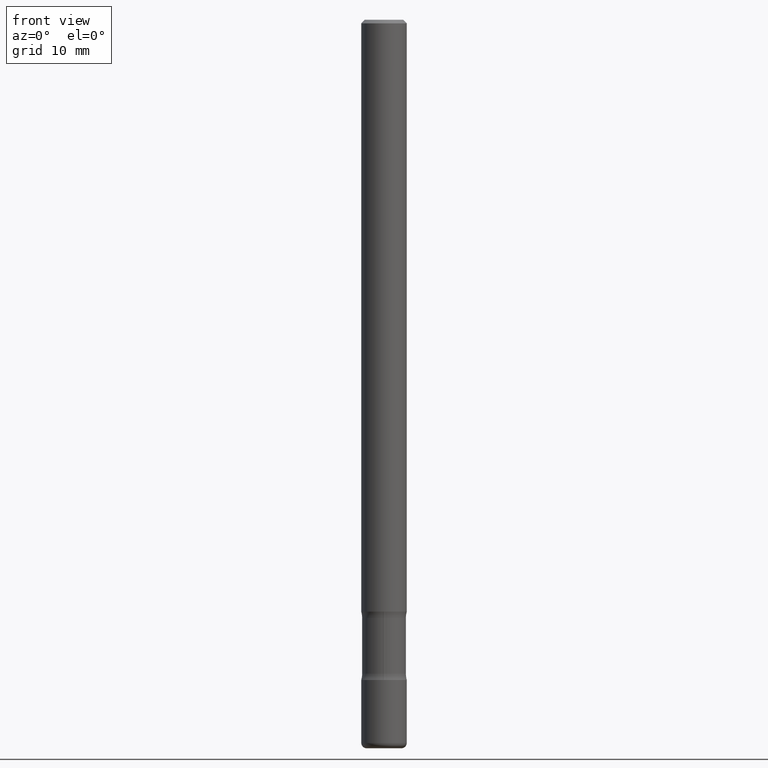
[diagram: clean part render]
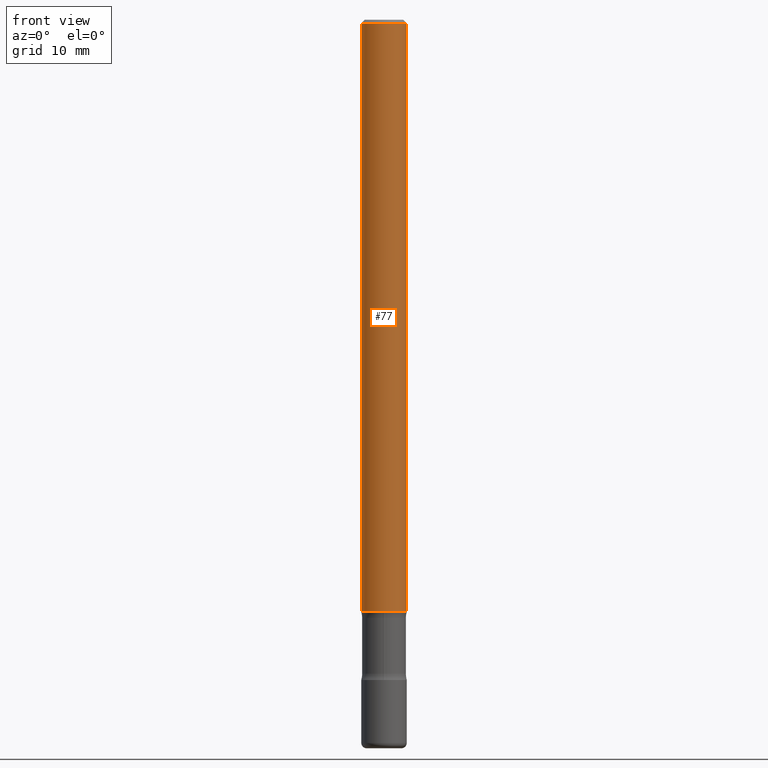
[diagram: same view with one face highlighted and labeled with its STEP entity id]
A machine part, front view. The second image highlights one B-rep face of the part: STEP entity #77.
In plain terms, the highlighted cylindrical surface (edge-blend (fillet) strip) has radius 3.175 mm, axis along (-0, 0, 1).
Its self-contained STEP definition (entity closure, byte-faithful):
#37 = ORIENTED_EDGE ( 'NONE', *, *, #190, .F. ) ;
#39 = CARTESIAN_POINT ( 'NONE',  ( 7.947773620101693940E-29, -1.134731435124022443E-14, -3.250000000000000000 ) ) ;
#77 = ADVANCED_FACE ( 'NONE', ( #260 ), #253, .T. ) ;
#85 = CARTESIAN_POINT ( 'NONE',  ( 0.1250000000000000000, -1.222018468595100619E-14, -3.250000000000000000 ) ) ;
#108 = VERTEX_POINT ( 'NONE', #339 ) ;
#136 = DIRECTION ( 'NONE',  ( -2.445468806185136877E-29, 3.491481338843145188E-15, 1.000000000000000000 ) ) ;
#160 = DIRECTION ( 'NONE',  ( -2.445468806185136877E-29, 3.491481338843145188E-15, 1.000000000000000000 ) ) ;
#184 = ORIENTED_EDGE ( 'NONE', *, *, #439, .F. ) ;
#190 = EDGE_CURVE ( 'NONE', #108, #415, #728, .T. ) ;
#192 = ORIENTED_EDGE ( 'NONE', *, *, #427, .T. ) ;
#198 = DIRECTION ( 'NONE',  ( 1.000000000000000000, -6.982962677686266711E-15, 0.000000000000000000 ) ) ;
#208 = CARTESIAN_POINT ( 'NONE',  ( -0.1249999999999996947, 8.030407079339181671E-16, -0.02000000000000002470 ) ) ;
#224 = DIRECTION ( 'NONE',  ( 1.000000000000000000, -6.982962677686262766E-15, 0.000000000000000000 ) ) ;
#235 = ORIENTED_EDGE ( 'NONE', *, *, #742, .T. ) ;
#245 = VERTEX_POINT ( 'NONE', #85 ) ;
#253 = CYLINDRICAL_SURFACE ( 'NONE', #756, 0.1249999999999998473 ) ;
#260 = FACE_OUTER_BOUND ( 'NONE', #282, .T. ) ;
#282 = EDGE_LOOP ( 'NONE', ( #37, #235, #192, #184 ) ) ;
#300 = CARTESIAN_POINT ( 'NONE',  ( 0.1249999999999996947, -9.273918764983021797E-16, -0.02000000000000002470 ) ) ;
#311 = CARTESIAN_POINT ( 'NONE',  ( 4.890937612370279289E-31, -6.982962677686299005E-17, -0.02000000000000002470 ) ) ;
#312 = DIRECTION ( 'NONE',  ( -2.445468806185136597E-29, 3.491481338843145583E-15, 1.000000000000000000 ) ) ;
#339 = CARTESIAN_POINT ( 'NONE',  ( -0.1250000000000000278, -4.820393569308410741E-15, -3.250000000000000000 ) ) ;
#345 = CARTESIAN_POINT ( 'NONE',  ( -0.1249999999999998473, 8.881784197001241477E-16, -6.148668862818624520E-30 ) ) ;
#377 = CIRCLE ( 'NONE', #795, 0.1249999999999996947 ) ;
#415 = VERTEX_POINT ( 'NONE', #208 ) ;
#427 = EDGE_CURVE ( 'NONE', #245, #519, #518, .T. ) ;
#439 = EDGE_CURVE ( 'NONE', #415, #519, #377, .T. ) ;
#445 = CARTESIAN_POINT ( 'NONE',  ( 0.000000000000000000, 0.000000000000000000, 0.000000000000000000 ) ) ;
#449 = AXIS2_PLACEMENT_3D ( 'NONE', #39, #790, #224 ) ;
#514 = DIRECTION ( 'NONE',  ( -2.445468806185136597E-29, 3.491481338843145583E-15, 1.000000000000000000 ) ) ;
#518 = LINE ( 'NONE', #576, #632 ) ;
#519 = VERTEX_POINT ( 'NONE', #300 ) ;
#575 = CIRCLE ( 'NONE', #449, 0.1250000000000000000 ) ;
#576 = CARTESIAN_POINT ( 'NONE',  ( 0.1249999999999998473, -8.728703347107822541E-16, 6.095220969744912034E-30 ) ) ;
#581 = DIRECTION ( 'NONE',  ( 1.000000000000000000, -6.982962677686266711E-15, 4.876176775795935793E-29 ) ) ;
#630 = VECTOR ( 'NONE', #160, 39.37007874015748143 ) ;
#632 = VECTOR ( 'NONE', #136, 39.37007874015748143 ) ;
#728 = LINE ( 'NONE', #345, #630 ) ;
#742 = EDGE_CURVE ( 'NONE', #108, #245, #575, .T. ) ;
#756 = AXIS2_PLACEMENT_3D ( 'NONE', #445, #312, #581 ) ;
#790 = DIRECTION ( 'NONE',  ( -2.445468806185136597E-29, 3.491481338843145583E-15, 1.000000000000000000 ) ) ;
#795 = AXIS2_PLACEMENT_3D ( 'NONE', #311, #514, #198 ) ;